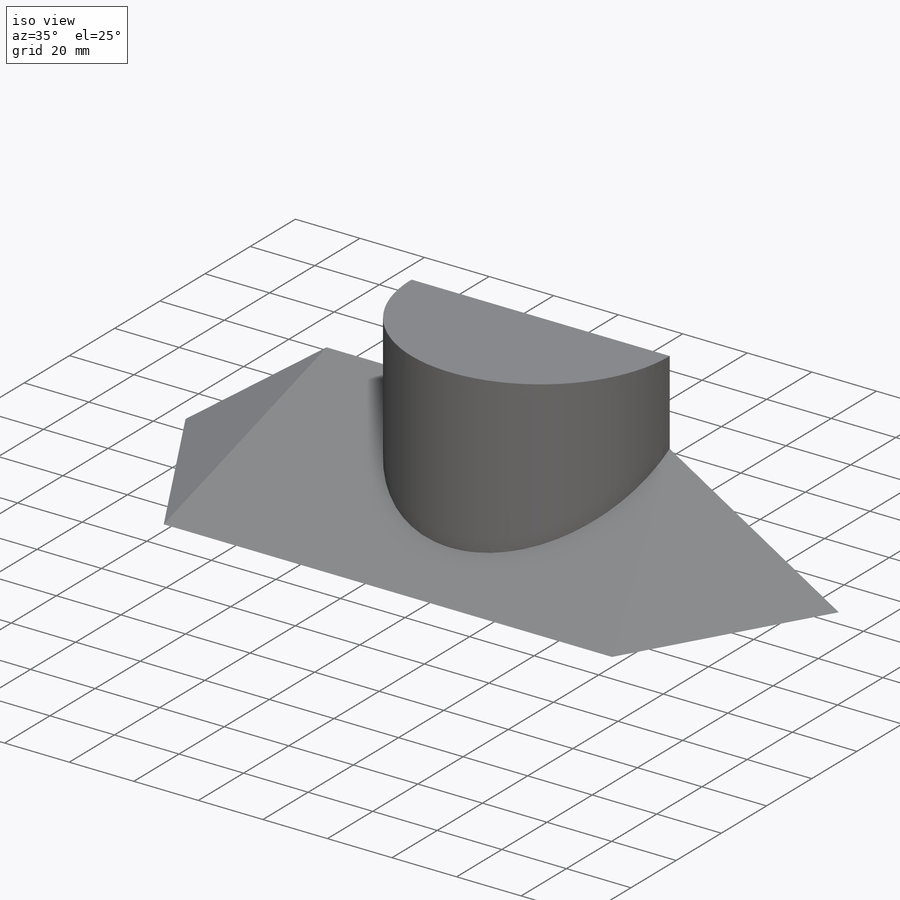
[diagram: iso view]
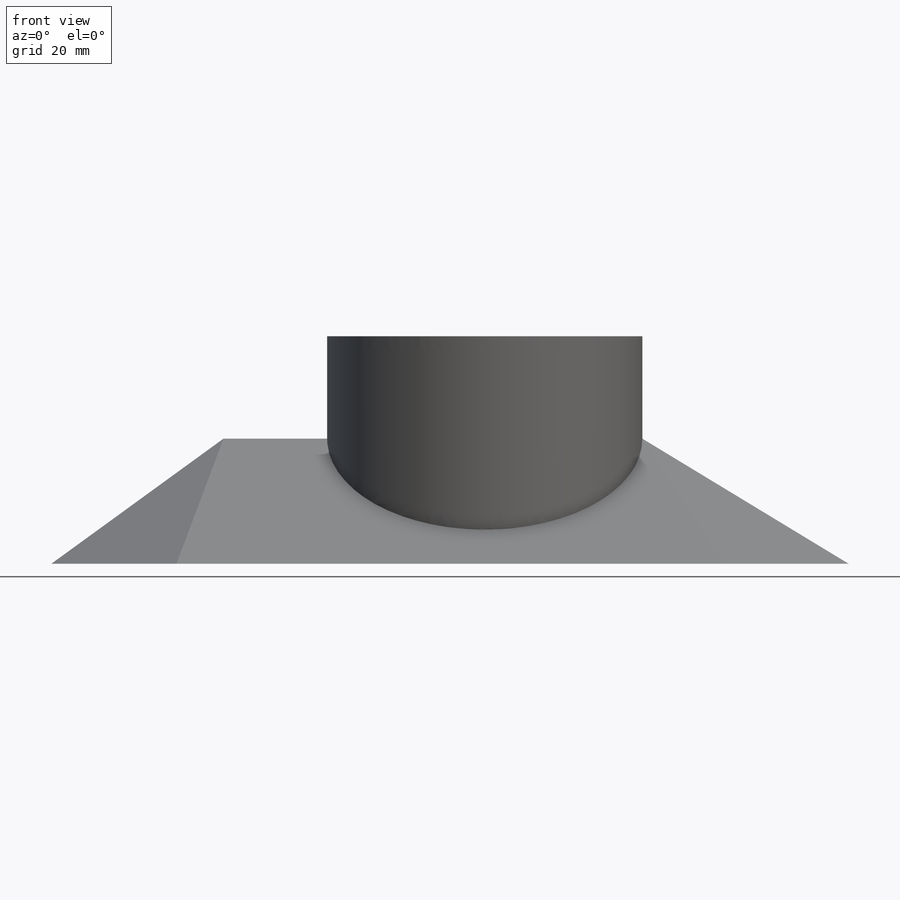
[diagram: front view]
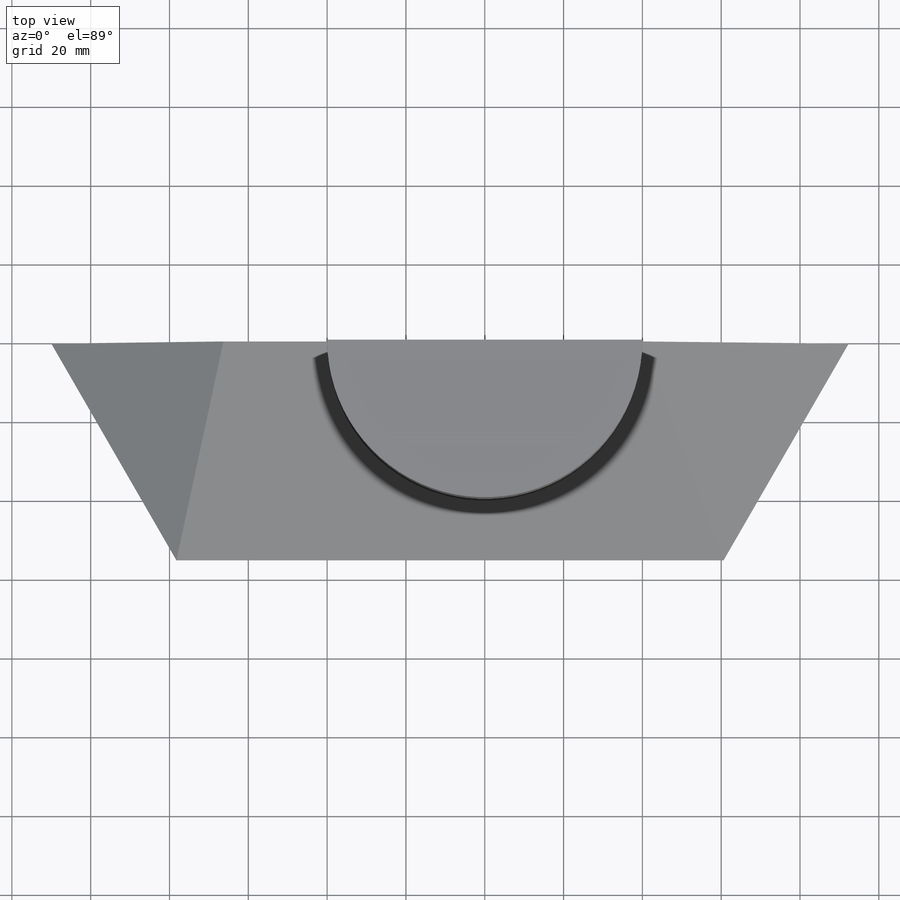
[diagram: top view]
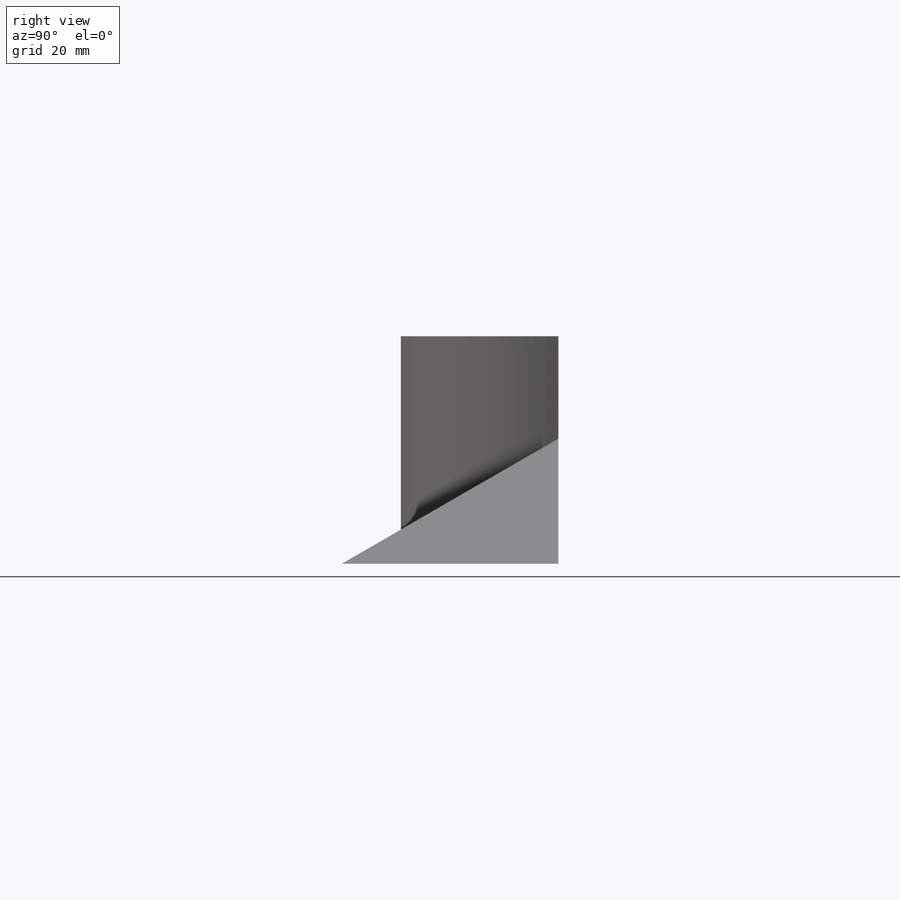
[diagram: right view]
SOLIDWORKS PART (.sldprt)
format: sldprt  version: not decoded by parser v0  size: 268,288 bytes
history: native  units: mm
features: sketch x7, plane x5, extrude x4, cut_extrude x3, material x1 (+14 scaffold rows collapsed)
feature tree (34):
  scaffold x14  (default folders/planes/origin — collapsed)
  material  "Material <not specified>"
  sketch  "Sketch1"  dims[c1.D1=70.0mm c1.D2=~63.531919mm c2.D2=60.0deg c2.D3=55.0mm c2.D4=~98.103809mm c3.D4=60.0deg]
  sketch  "Sketch2"  dims[c1.D1=55.0mm c1.D2=~64.109886mm c2.D2=30.0deg]
  extrude  "Extrude1"  Depth=78.25mm
  plane  "Plane1"
  plane  "Plane2"  Offset=31.755mm
  sketch  "Sketch4"  dims[c1.D1=~51.726423mm c2.D1=40.0deg]
  extrude  "Extrude2"  Depth=63.51mm
  plane  "Plane3"
  plane  "Plane4"  Offset=31.755mm
  sketch  "Sketch6"  dims[c1.D1=~67.773766mm c2.D1=35.0deg]
  extrude  "Extrude4"  Depth=103.51mm
  sketch  "Sketch7"
  cut_extrude  "Cut-Extrude1"  Depth=10mm
  sketch  "Sketch8"
  cut_extrude  "Cut-Extrude2"  Depth=40mm
  sketch  "Sketch9"
  cut_extrude  "Cut-Extrude3"  [1 undecoded]
  extrude  "Extrude5"  Depth=57.75mm
  plane  "AB Dihedral Angle Plane"
decode coverage: 10 of 14 modeling features carry decoded parameters
note: ~ marks probable driven/reference dimensions
note: 1 parameter value undecoded
note: suppression state not decoded; provenance and decode notes live in map.json
